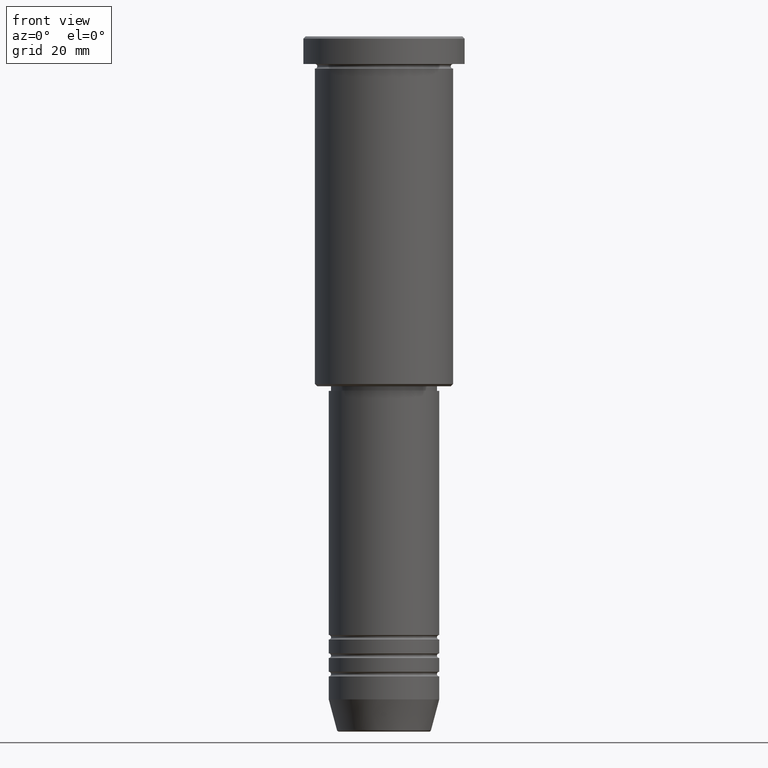
[diagram: clean part render]
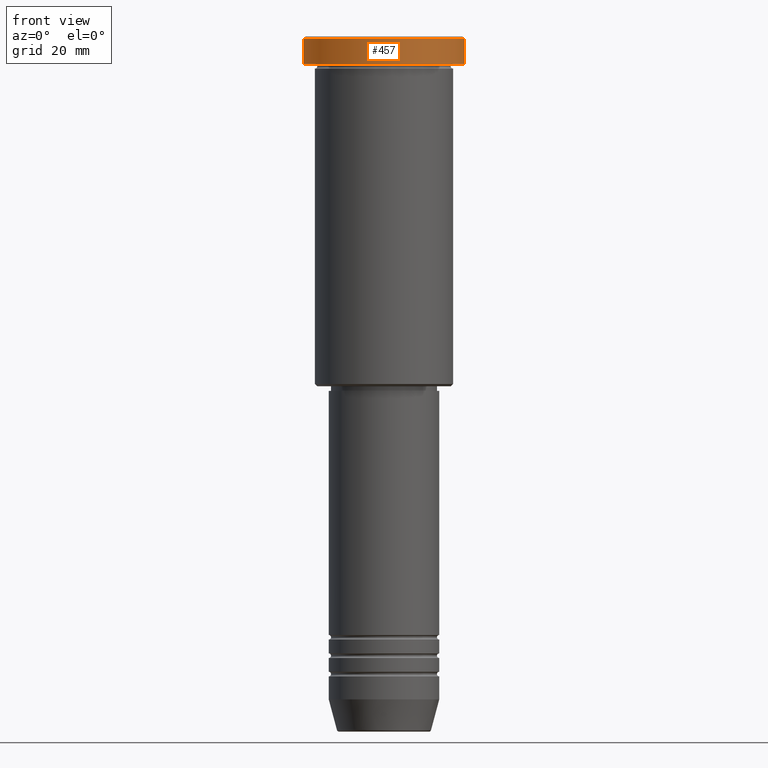
[diagram: same view with one face highlighted and labeled with its STEP entity id]
A machine part, front view. The second image highlights one B-rep face of the part: STEP entity #457.
In plain terms, the highlighted cylindrical surface (partial cylindrical patch) has radius 17.5 mm, axis along (-0, -0, 1).
Its self-contained STEP definition (entity closure, byte-faithful):
#40 = DIRECTION ( 'NONE',  ( -0.000000000000000000, -0.000000000000000000, 1.000000000000000000 ) ) ;
#48 = AXIS2_PLACEMENT_3D ( 'NONE', #888, #344, #329 ) ;
#227 = CARTESIAN_POINT ( 'NONE',  ( 0.000000000000000000, 0.000000000000000000, 0.000000000000000000 ) ) ;
#269 = CIRCLE ( 'NONE', #48, 17.50000000000000000 ) ;
#299 = CARTESIAN_POINT ( 'NONE',  ( -17.50000000000000000, 2.143131898507868248E-15, -5.999999999999995559 ) ) ;
#313 = CARTESIAN_POINT ( 'NONE',  ( 17.50000000000000000, 0.000000000000000000, -0.4999999999999865663 ) ) ;
#318 = VERTEX_POINT ( 'NONE', #299 ) ;
#329 = DIRECTION ( 'NONE',  ( 1.000000000000000000, 0.000000000000000000, 0.000000000000000000 ) ) ;
#330 = ORIENTED_EDGE ( 'NONE', *, *, #410, .T. ) ;
#334 = ORIENTED_EDGE ( 'NONE', *, *, #890, .F. ) ;
#343 = EDGE_CURVE ( 'NONE', #735, #1023, #963, .T. ) ;
#344 = DIRECTION ( 'NONE',  ( 0.000000000000000000, 0.000000000000000000, -1.000000000000000000 ) ) ;
#400 = EDGE_CURVE ( 'NONE', #318, #735, #1177, .T. ) ;
#410 = EDGE_CURVE ( 'NONE', #1023, #756, #269, .T. ) ;
#445 = ORIENTED_EDGE ( 'NONE', *, *, #343, .T. ) ;
#457 = ADVANCED_FACE ( 'NONE', ( #550 ), #1037, .T. ) ;
#473 = AXIS2_PLACEMENT_3D ( 'NONE', #1001, #910, #1167 ) ;
#550 = FACE_OUTER_BOUND ( 'NONE', #1052, .T. ) ;
#570 = CARTESIAN_POINT ( 'NONE',  ( -17.50000000000000000, 2.143131898507868248E-15, -0.4999999999999865663 ) ) ;
#594 = VECTOR ( 'NONE', #1145, 1000.000000000000000 ) ;
#735 = VERTEX_POINT ( 'NONE', #1107 ) ;
#756 = VERTEX_POINT ( 'NONE', #570 ) ;
#769 = AXIS2_PLACEMENT_3D ( 'NONE', #227, #40, #967 ) ;
#775 = CARTESIAN_POINT ( 'NONE',  ( 17.50000000000000000, 0.000000000000000000, 0.000000000000000000 ) ) ;
#796 = LINE ( 'NONE', #1170, #594 ) ;
#872 = DIRECTION ( 'NONE',  ( -0.000000000000000000, -0.000000000000000000, 1.000000000000000000 ) ) ;
#888 = CARTESIAN_POINT ( 'NONE',  ( 0.000000000000000000, 0.000000000000000000, -0.4999999999999865663 ) ) ;
#890 = EDGE_CURVE ( 'NONE', #318, #756, #796, .T. ) ;
#910 = DIRECTION ( 'NONE',  ( -0.000000000000000000, -0.000000000000000000, 1.000000000000000000 ) ) ;
#914 = ORIENTED_EDGE ( 'NONE', *, *, #400, .T. ) ;
#949 = VECTOR ( 'NONE', #872, 1000.000000000000000 ) ;
#963 = LINE ( 'NONE', #775, #949 ) ;
#967 = DIRECTION ( 'NONE',  ( 1.000000000000000000, 0.000000000000000000, 0.000000000000000000 ) ) ;
#1001 = CARTESIAN_POINT ( 'NONE',  ( 0.000000000000000000, 0.000000000000000000, -5.999999999999995559 ) ) ;
#1023 = VERTEX_POINT ( 'NONE', #313 ) ;
#1037 = CYLINDRICAL_SURFACE ( 'NONE', #769, 17.50000000000000000 ) ;
#1052 = EDGE_LOOP ( 'NONE', ( #334, #914, #445, #330 ) ) ;
#1107 = CARTESIAN_POINT ( 'NONE',  ( 17.50000000000000000, 0.000000000000000000, -5.999999999999995559 ) ) ;
#1145 = DIRECTION ( 'NONE',  ( -0.000000000000000000, -0.000000000000000000, 1.000000000000000000 ) ) ;
#1167 = DIRECTION ( 'NONE',  ( 1.000000000000000000, 0.000000000000000000, 0.000000000000000000 ) ) ;
#1170 = CARTESIAN_POINT ( 'NONE',  ( -17.50000000000000000, 2.143131898507868248E-15, 0.000000000000000000 ) ) ;
#1177 = CIRCLE ( 'NONE', #473, 17.50000000000000000 ) ;